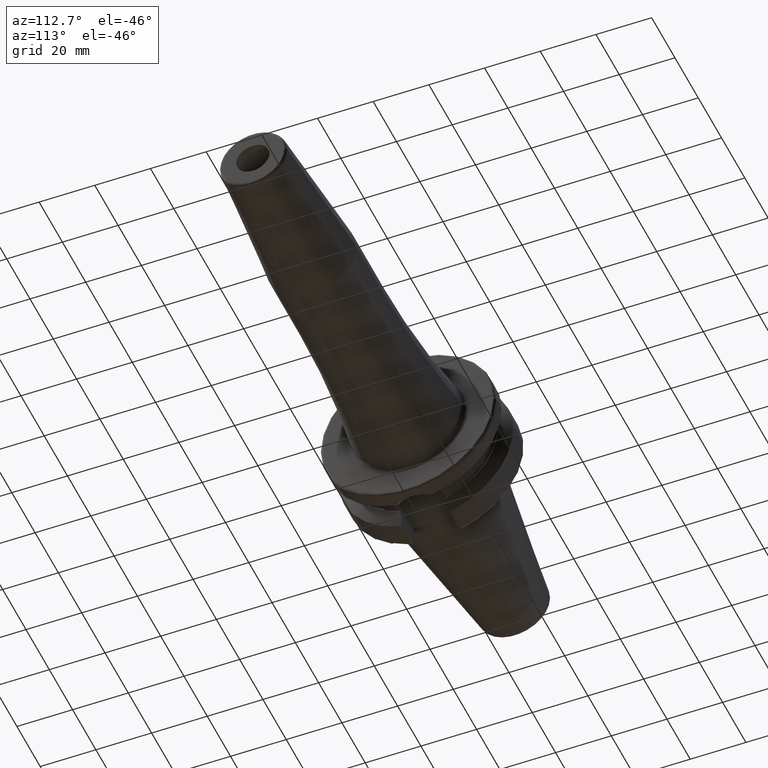
[diagram: clean part render]
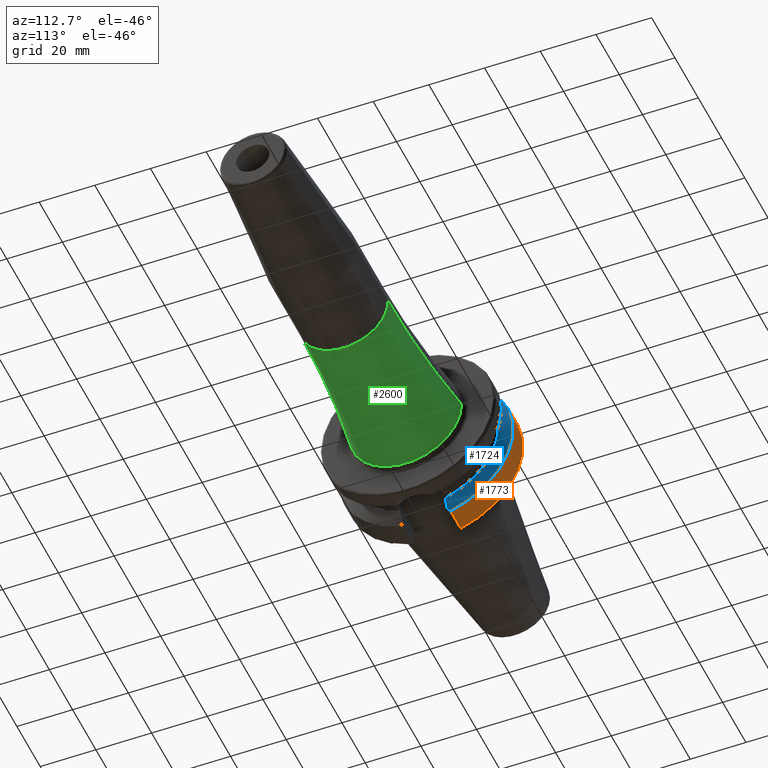
[diagram: same view with three faces highlighted in distinct colors, each labeled with its STEP entity id]
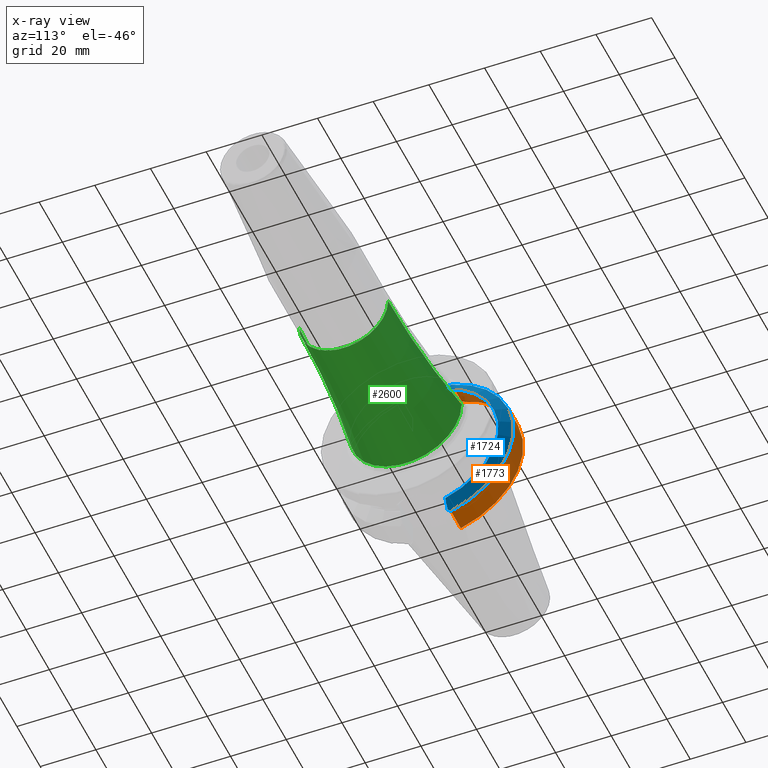
[diagram: x-ray of the same camera — body ghosted, the three highlighted faces saturated]
A machine part, auxiliary view with three faces highlighted in distinct colors.
The next image is the same camera in x-ray (body ghosted, the three faces saturated) — at least one of them is partly hidden behind the body in this view.
Their STEP definitions:

[orange] entity #1773 — the highlighted cylindrical surface (partial cylindrical patch) has radius 31.4875 mm, axis along (1, 0, 0).
#228=CARTESIAN_POINT('',(3.E0,0.E0,0.E0));
#229=DIRECTION('',(-1.E0,0.E0,0.E0));
#230=DIRECTION('',(0.E0,2.983189831898E-1,9.544662300305E-1));
#231=AXIS2_PLACEMENT_3D('',#228,#229,#230);
#233=DIRECTION('',(-9.999999999998E-1,-3.572441515959E-7,-4.802508939409E-7));
#234=VECTOR('',#233,8.572722533299E0);
#235=CARTESIAN_POINT('',(1.157272253103E1,9.052779463114E0,-3.015808084481E1));
#236=LINE('',#235,#234);
#237=CARTESIAN_POINT('',(1.157272253103E1,0.E0,0.E0));
#238=DIRECTION('',(1.E0,0.E0,0.E0));
#239=DIRECTION('',(0.E0,2.875039130802E-1,-9.577794631143E-1));
#240=AXIS2_PLACEMENT_3D('',#237,#238,#239);
#242=DIRECTION('',(9.999999999911E-1,2.496639373931E-6,-3.395432034657E-6));
#243=VECTOR('',#242,8.572722551500E0);
#244=CARTESIAN_POINT('',(2.999999979607E0,9.393297580193E0,3.005378452618E1));
#245=LINE('',#244,#243);
#576=CARTESIAN_POINT('',(2.999999997734E0,9.052776400559E0,-3.015808496187E1));
#1364=CARTESIAN_POINT('',(1.157272253103E1,9.052779463114E0,-3.015808084481E1));
#1365=CARTESIAN_POINT('',(1.157272253103E1,9.393318983190E0,3.005375541808E1));
#1366=VERTEX_POINT('',#1364);
#1367=VERTEX_POINT('',#1365);
#1379=CARTESIAN_POINT('',(3.E0,9.393347656107E0,3.005374645633E1));
#1381=VERTEX_POINT('',#1379);
#1396=VERTEX_POINT('',#576);
#1759=CARTESIAN_POINT('',(-7.002E1,0.E0,0.E0));
#1760=DIRECTION('',(1.E0,0.E0,0.E0));
#1761=DIRECTION('',(0.E0,-1.E0,0.E0));
#1762=AXIS2_PLACEMENT_3D('',#1759,#1760,#1761);
#1763=CYLINDRICAL_SURFACE('',#1762,3.14875E1);
#1765=ORIENTED_EDGE('',*,*,#1764,.T.);
#1767=ORIENTED_EDGE('',*,*,#1766,.F.);
#1768=ORIENTED_EDGE('',*,*,#1712,.T.);
#1770=ORIENTED_EDGE('',*,*,#1769,.F.);
#1771=EDGE_LOOP('',(#1765,#1767,#1768,#1770));
#1772=FACE_OUTER_BOUND('',#1771,.F.);
#1773=ADVANCED_FACE('',(#1772),#1763,.T.);
#232=CIRCLE('',#231,3.14875E1);
#241=CIRCLE('',#240,3.14875E1);
#1712=EDGE_CURVE('',#1366,#1367,#241,.T.);
#1764=EDGE_CURVE('',#1381,#1396,#232,.T.);
#1766=EDGE_CURVE('',#1366,#1396,#236,.T.);
#1769=EDGE_CURVE('',#1381,#1367,#245,.T.);

[blue] entity #1724 — the highlighted conical surface has half-angle 60 deg.
#155=CARTESIAN_POINT('',(1.212089730171E1,8.095E0,-2.944558475789E1));
#156=CARTESIAN_POINT('',(1.234623272522E1,8.095E0,-2.904081227564E1));
#157=CARTESIAN_POINT('',(1.279052069613E1,8.095E0,-2.824155997645E1));
#158=CARTESIAN_POINT('',(1.343761208926E1,8.095E0,-2.707376738597E1));
#159=CARTESIAN_POINT('',(1.385633764716E1,8.095E0,-2.631545873157E1));
#160=CARTESIAN_POINT('',(1.40625E1,8.095E0,-2.594139336151E1));
#200=CARTESIAN_POINT('',(1.40625E1,0.E0,0.E0));
#201=DIRECTION('',(1.E0,0.E0,0.E0));
#202=DIRECTION('',(0.E0,2.978832194960E-1,-9.546023190537E-1));
#203=AXIS2_PLACEMENT_3D('',#200,#201,#202);
#237=CARTESIAN_POINT('',(1.157272253103E1,0.E0,0.E0));
#238=DIRECTION('',(1.E0,0.E0,0.E0));
#239=DIRECTION('',(0.E0,2.875039130802E-1,-9.577794631143E-1));
#240=AXIS2_PLACEMENT_3D('',#237,#238,#239);
#622=CARTESIAN_POINT('',(1.212089730171E1,8.095E0,-2.944558475789E1));
#623=CARTESIAN_POINT('',(1.203210735485E1,8.251548423090E0,-2.956204177452E1));
#624=CARTESIAN_POINT('',(1.185196062668E1,8.567728822292E0,-2.979724967558E1));
#625=CARTESIAN_POINT('',(1.166666286204E1,8.890070036919E0,-3.003704063260E1));
#626=CARTESIAN_POINT('',(1.157272253103E1,9.052779463114E0,-3.015808084481E1));
#632=CARTESIAN_POINT('',(1.157272253103E1,9.393318983190E0,3.005375541808E1));
#633=CARTESIAN_POINT('',(1.170089151867E1,9.171323784651E0,2.989055444592E1));
#634=CARTESIAN_POINT('',(1.195252831620E1,8.732937755222E0,2.956827258282E1));
#635=CARTESIAN_POINT('',(1.219479613906E1,8.305773148711E0,2.925424020953E1));
#636=CARTESIAN_POINT('',(1.231359829731E1,8.095E0,2.909928918805E1));
#673=CARTESIAN_POINT('',(1.40625E1,8.095E0,2.594139336151E1));
#674=CARTESIAN_POINT('',(1.387619304722E1,8.095E0,2.627943267022E1));
#675=CARTESIAN_POINT('',(1.349822147379E1,8.095E0,2.696405968402E1));
#676=CARTESIAN_POINT('',(1.291532431893E1,8.095E0,2.801651320770E1));
#677=CARTESIAN_POINT('',(1.251595456147E1,8.095E0,2.873548878206E1));
#678=CARTESIAN_POINT('',(1.231359829731E1,8.095E0,2.909928918805E1));
#1238=CARTESIAN_POINT('',(1.40625E1,8.095E0,-2.594139336151E1));
#1239=CARTESIAN_POINT('',(1.40625E1,8.095E0,2.594139336151E1));
#1240=VERTEX_POINT('',#1238);
#1241=VERTEX_POINT('',#1239);
#1346=VERTEX_POINT('',#678);
#1354=VERTEX_POINT('',#155);
#1364=CARTESIAN_POINT('',(1.157272253103E1,9.052779463114E0,-3.015808084481E1));
#1365=CARTESIAN_POINT('',(1.157272253103E1,9.393318983190E0,3.005375541808E1));
#1366=VERTEX_POINT('',#1364);
#1367=VERTEX_POINT('',#1365);
#1707=CARTESIAN_POINT('',(1.281761126552E1,0.E0,0.E0));
#1708=DIRECTION('',(-1.E0,0.E0,0.E0));
#1709=DIRECTION('',(0.E0,1.E0,0.E0));
#1710=AXIS2_PLACEMENT_3D('',#1707,#1708,#1709);
#1711=CONICAL_SURFACE('',#1710,2.933128946210E1,6.E1);
#1713=ORIENTED_EDGE('',*,*,#1712,.F.);
#1715=ORIENTED_EDGE('',*,*,#1714,.F.);
#1716=ORIENTED_EDGE('',*,*,#1658,.T.);
#1717=ORIENTED_EDGE('',*,*,#1681,.T.);
#1719=ORIENTED_EDGE('',*,*,#1718,.T.);
#1721=ORIENTED_EDGE('',*,*,#1720,.F.);
#1722=EDGE_LOOP('',(#1713,#1715,#1716,#1717,#1719,#1721));
#1723=FACE_OUTER_BOUND('',#1722,.F.);
#1724=ADVANCED_FACE('',(#1723),#1711,.T.);
#161=B_SPLINE_CURVE_WITH_KNOTS('',3,(#155,#156,#157,#158,#159,#160),
.UNSPECIFIED.,.F.,.F.,(4,1,1,4),(0.E0,3.333333333333E-1,6.666666666667E-1,1.E0),
.UNSPECIFIED.);
#204=CIRCLE('',#203,2.717507892421E1);
#241=CIRCLE('',#240,3.14875E1);
#627=B_SPLINE_CURVE_WITH_KNOTS('',3,(#622,#623,#624,#625,#626),.UNSPECIFIED.,
.F.,.F.,(4,1,4),(0.E0,5.E-1,1.E0),.UNSPECIFIED.);
#637=B_SPLINE_CURVE_WITH_KNOTS('',3,(#632,#633,#634,#635,#636),.UNSPECIFIED.,
.F.,.F.,(4,1,4),(0.E0,5.E-1,1.E0),.UNSPECIFIED.);
#679=B_SPLINE_CURVE_WITH_KNOTS('',3,(#673,#674,#675,#676,#677,#678),
.UNSPECIFIED.,.F.,.F.,(4,1,1,4),(0.E0,3.333333333333E-1,6.666666666667E-1,1.E0),
.UNSPECIFIED.);
#1658=EDGE_CURVE('',#1354,#1240,#161,.T.);
#1681=EDGE_CURVE('',#1240,#1241,#204,.T.);
#1712=EDGE_CURVE('',#1366,#1367,#241,.T.);
#1714=EDGE_CURVE('',#1354,#1366,#627,.T.);
#1718=EDGE_CURVE('',#1241,#1346,#679,.T.);
#1720=EDGE_CURVE('',#1367,#1346,#637,.T.);

[green] entity #2600 — the highlighted toroidal blend (fillet) surface has major radius 366 mm and minor (blend) radius 350 mm.
#861=CARTESIAN_POINT('',(2.869540229885E1,0.E0,0.E0));
#862=DIRECTION('',(1.E0,0.E0,0.E0));
#863=DIRECTION('',(0.E0,-1.E0,0.E0));
#864=AXIS2_PLACEMENT_3D('',#861,#862,#863);
#866=CARTESIAN_POINT('',(8.2E1,-3.66E2,-8.964414569759E-14));
#867=DIRECTION('',(0.E0,0.E0,1.E0));
#868=DIRECTION('',(0.E0,1.E0,0.E0));
#869=AXIS2_PLACEMENT_3D('',#866,#867,#868);
#871=CARTESIAN_POINT('',(8.2E1,3.66E2,4.482207284879E-14));
#872=DIRECTION('',(0.E0,0.E0,-1.E0));
#873=DIRECTION('',(0.E0,-1.E0,0.E0));
#874=AXIS2_PLACEMENT_3D('',#871,#872,#873);
#876=CARTESIAN_POINT('',(8.2E1,0.E0,0.E0));
#877=DIRECTION('',(1.E0,0.E0,0.E0));
#878=DIRECTION('',(0.E0,-1.E0,0.E0));
#879=AXIS2_PLACEMENT_3D('',#876,#877,#878);
#1433=CARTESIAN_POINT('',(8.2E1,1.6E1,0.E0));
#1434=CARTESIAN_POINT('',(8.2E1,-1.6E1,0.E0));
#1435=VERTEX_POINT('',#1433);
#1436=VERTEX_POINT('',#1434);
#1441=CARTESIAN_POINT('',(2.869540229885E1,-2.008292921002E1,0.E0));
#1442=CARTESIAN_POINT('',(2.869540229885E1,2.008292921002E1,0.E0));
#1443=VERTEX_POINT('',#1441);
#1444=VERTEX_POINT('',#1442);
#2588=CARTESIAN_POINT('',(8.2E1,0.E0,0.E0));
#2589=DIRECTION('',(1.E0,0.E0,0.E0));
#2590=DIRECTION('',(0.E0,-1.E0,0.E0));
#2591=AXIS2_PLACEMENT_3D('',#2588,#2589,#2590);
#2592=TOROIDAL_SURFACE('',#2591,3.66E2,3.5E2);
#2593=ORIENTED_EDGE('',*,*,#2553,.F.);
#2594=ORIENTED_EDGE('',*,*,#2583,.F.);
#2596=ORIENTED_EDGE('',*,*,#2595,.T.);
#2597=ORIENTED_EDGE('',*,*,#2579,.T.);
#2598=EDGE_LOOP('',(#2593,#2594,#2596,#2597));
#2599=FACE_OUTER_BOUND('',#2598,.F.);
#2600=ADVANCED_FACE('',(#2599),#2592,.F.);
#865=CIRCLE('',#864,2.008292921002E1);
#870=CIRCLE('',#869,3.5E2);
#875=CIRCLE('',#874,3.5E2);
#880=CIRCLE('',#879,1.6E1);
#2553=EDGE_CURVE('',#1443,#1444,#865,.T.);
#2579=EDGE_CURVE('',#1435,#1444,#875,.T.);
#2583=EDGE_CURVE('',#1436,#1443,#870,.T.);
#2595=EDGE_CURVE('',#1436,#1435,#880,.T.);